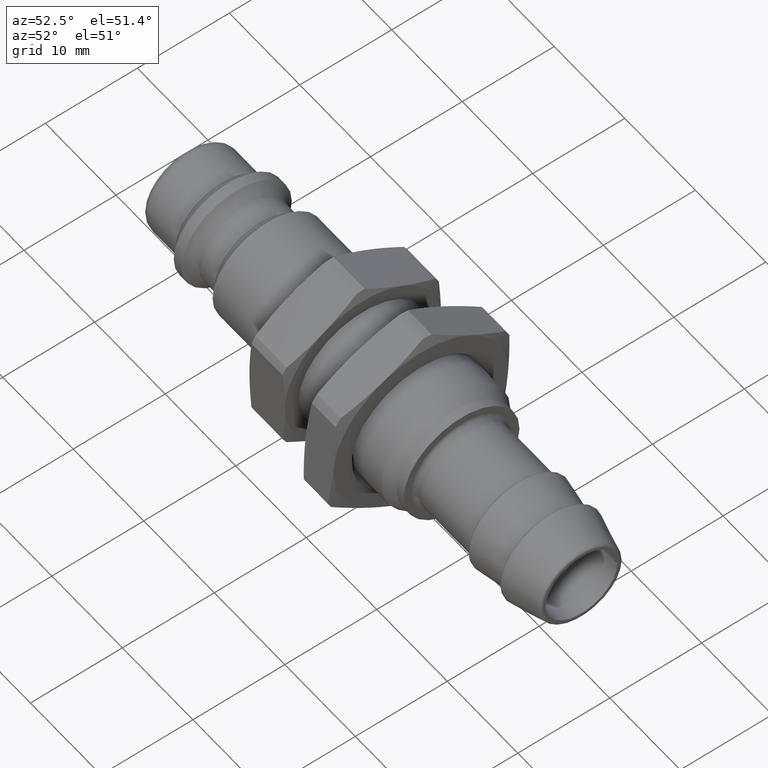
[diagram: clean part render]
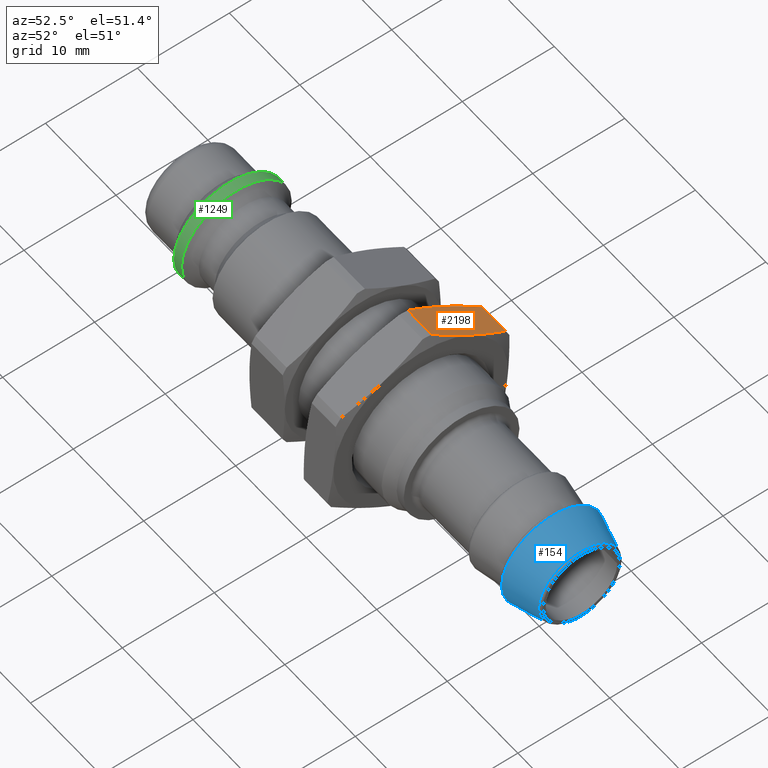
[diagram: same view with three faces highlighted in distinct colors, each labeled with its STEP entity id]
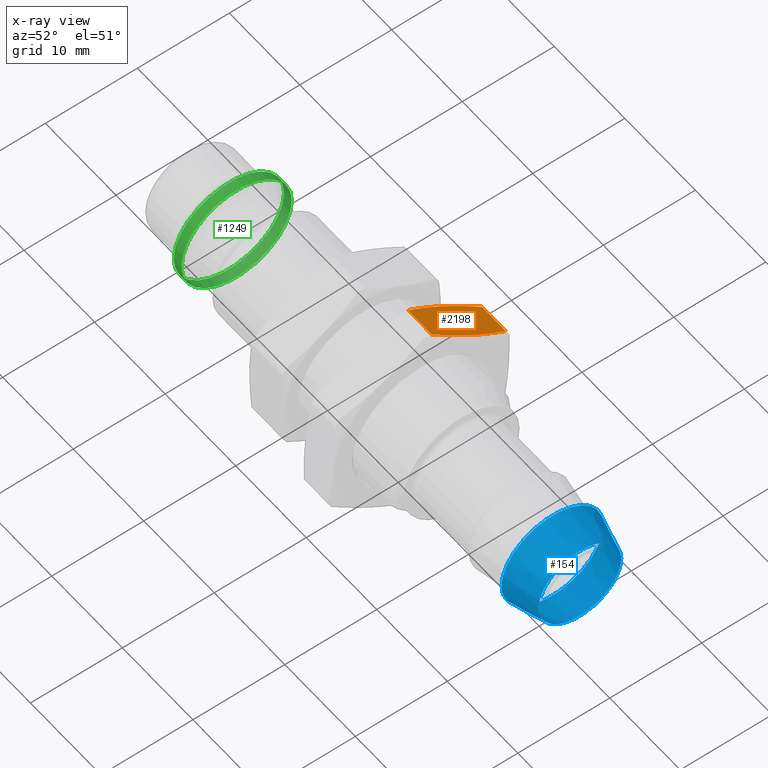
[diagram: x-ray of the same camera — body ghosted, the three highlighted faces saturated]
A machine part, auxiliary view with three faces highlighted in distinct colors.
The next image is the same camera in x-ray (body ghosted, the three faces saturated) — at least one of them is partly hidden behind the body in this view.
Their STEP definitions:

[orange] entity #2198 — the highlighted planar face has unit normal (0, -0.5752, -0.818).
#1656=CARTESIAN_POINT('',(0.0,4.750000000000002,8.227241335952167));
#1657=VERTEX_POINT('',#1656);
#1741=CARTESIAN_POINT('',(4.000000000000000,4.750000000000002,8.227241335952167));
#1742=VERTEX_POINT('',#1741);
#2119=CARTESIAN_POINT('',(4.659951927387788,4.750000000000002,8.227241335952167));
#2120=DIRECTION('',(0.0,-0.500000000000000,-0.866025403784439));
#2121=DIRECTION('',(0.0,0.866025403784439,-0.500000000000000));
#2122=AXIS2_PLACEMENT_3D('',#2119,#2120,#2121);
#2123=PLANE('',#2122);
#2124=CARTESIAN_POINT('',(0.321539030917348,0.486198878934433,10.688948060970400));
#2125=VERTEX_POINT('',#2124);
#2126=CARTESIAN_POINT('',(0.321539030917348,0.486198878934435,10.688948060970400));
#2127=CARTESIAN_POINT('',(9.855398E-016,2.744746997518659,9.384974696728074));
#2128=CARTESIAN_POINT('',(-3.469447E-017,4.750000000000001,8.227241335952167));
#2136=(BOUNDED_CURVE()B_SPLINE_CURVE(2,(#2126,#2127,#2128),.UNSPECIFIED.,.F.,.U.)B_SPLINE_CURVE_WITH_KNOTS((3,3),(0.0,0.493628243022414),.UNSPECIFIED.)CURVE()GEOMETRIC_REPRESENTATION_ITEM()RATIONAL_B_SPLINE_CURVE((1.0,1.031095482841850,1.0))REPRESENTATION_ITEM(''));
#2137=EDGE_CURVE('',#2125,#1657,#2136,.T.);
#2138=ORIENTED_EDGE('',*,*,#2137,.F.);
#2139=CARTESIAN_POINT('',(3.678460969082653,0.486198878934433,10.688948060970400));
#2140=VERTEX_POINT('',#2139);
#2141=CARTESIAN_POINT('',(3.678460969082653,0.486198878934433,10.688948060970400));
#2142=DIRECTION('',(-1.0,0.0,0.0));
#2143=VECTOR('',#2142,3.356921938165305);
#2144=LINE('',#2141,#2143);
#2145=EDGE_CURVE('',#2140,#2125,#2144,.T.);
#2146=ORIENTED_EDGE('',*,*,#2145,.F.);
#2147=CARTESIAN_POINT('',(4.000000000000000,4.750000000000001,8.227241335952167));
#2148=CARTESIAN_POINT('',(4.0,2.744746997518663,9.384974696728074));
#2149=CARTESIAN_POINT('',(3.678460969082652,0.486198878934432,10.688948060970402));
#2157=(BOUNDED_CURVE()B_SPLINE_CURVE(2,(#2147,#2148,#2149),.UNSPECIFIED.,.F.,.U.)B_SPLINE_CURVE_WITH_KNOTS((3,3),(0.493628243022414,0.987256486044829),.UNSPECIFIED.)CURVE()GEOMETRIC_REPRESENTATION_ITEM()RATIONAL_B_SPLINE_CURVE((1.0,1.031095482841848,1.0))REPRESENTATION_ITEM(''));
#2158=EDGE_CURVE('',#1742,#2140,#2157,.T.);
#2159=ORIENTED_EDGE('',*,*,#2158,.F.);
#2160=CARTESIAN_POINT('',(3.678460969082653,9.013801121065569,5.765534610933933));
#2161=VERTEX_POINT('',#2160);
#2162=CARTESIAN_POINT('',(3.678460969082652,9.013801121065569,5.765534610933932));
#2163=CARTESIAN_POINT('',(3.999999999999999,6.755253002481341,7.069507975176260));
#2164=CARTESIAN_POINT('',(4.000000000000000,4.750000000000001,8.227241335952167));
#2172=(BOUNDED_CURVE()B_SPLINE_CURVE(2,(#2162,#2163,#2164),.UNSPECIFIED.,.F.,.U.)B_SPLINE_CURVE_WITH_KNOTS((3,3),(0.0,0.493628243022414),.UNSPECIFIED.)CURVE()GEOMETRIC_REPRESENTATION_ITEM()RATIONAL_B_SPLINE_CURVE((1.0,1.031095482841837,1.0))REPRESENTATION_ITEM(''));
#2173=EDGE_CURVE('',#2161,#1742,#2172,.T.);
#2174=ORIENTED_EDGE('',*,*,#2173,.F.);
#2175=CARTESIAN_POINT('',(0.321539030917348,9.013801121065569,5.765534610933933));
#2176=VERTEX_POINT('',#2175);
#2177=CARTESIAN_POINT('',(0.321539030917348,9.013801121065569,5.765534610933933));
#2178=DIRECTION('',(1.0,0.0,0.0));
#2179=VECTOR('',#2178,3.356921938165305);
#2180=LINE('',#2177,#2179);
#2181=EDGE_CURVE('',#2176,#2161,#2180,.T.);
#2182=ORIENTED_EDGE('',*,*,#2181,.F.);
#2183=CARTESIAN_POINT('',(-3.469447E-017,4.750000000000001,8.227241335952167));
#2184=CARTESIAN_POINT('',(-1.054929E-015,6.755253002481344,7.069507975176258));
#2185=CARTESIAN_POINT('',(0.321539030917347,9.013801121065567,5.765534610933933));
#2193=(BOUNDED_CURVE()B_SPLINE_CURVE(2,(#2183,#2184,#2185),.UNSPECIFIED.,.F.,.U.)B_SPLINE_CURVE_WITH_KNOTS((3,3),(0.493628243022414,0.987256486044828),.UNSPECIFIED.)CURVE()GEOMETRIC_REPRESENTATION_ITEM()RATIONAL_B_SPLINE_CURVE((1.0,1.031095482841812,1.0))REPRESENTATION_ITEM(''));
#2194=EDGE_CURVE('',#1657,#2176,#2193,.T.);
#2195=ORIENTED_EDGE('',*,*,#2194,.F.);
#2196=EDGE_LOOP('',(#2138,#2146,#2159,#2174,#2182,#2195));
#2197=FACE_OUTER_BOUND('',#2196,.T.);
#2198=ADVANCED_FACE('',(#2197),#2123,.F.);

[blue] entity #154 — the highlighted conical surface has half-angle 15 deg.
#112=CARTESIAN_POINT('',(55.777645713530774,4.494775897405344,-6.162976E-032));
#113=VERTEX_POINT('',#112);
#114=CARTESIAN_POINT('',(55.777645713530774,0.0,-5.504513E-016));
#115=DIRECTION('',(1.0,0.0,0.0));
#116=DIRECTION('',(0.0,-1.0,0.0));
#117=AXIS2_PLACEMENT_3D('',#114,#115,#116);
#118=CIRCLE('',#117,4.494775897405344);
#119=EDGE_CURVE('',#113,#113,#118,.T.);
#135=CARTESIAN_POINT('',(53.938822856765391,0.0,0.0));
#136=DIRECTION('',(-1.0,0.0,0.0));
#137=DIRECTION('',(0.0,1.0,0.0));
#138=AXIS2_PLACEMENT_3D('',#135,#136,#137);
#139=CONICAL_SURFACE('',#138,4.987486996899516,14.999999999999973);
#140=CARTESIAN_POINT('',(51.877645713530768,5.539777747886721,0.0));
#141=VERTEX_POINT('',#140);
#142=CARTESIAN_POINT('',(51.877645713530768,0.0,0.0));
#143=DIRECTION('',(1.0,0.0,0.0));
#144=DIRECTION('',(0.0,1.0,0.0));
#145=AXIS2_PLACEMENT_3D('',#142,#143,#144);
#146=CIRCLE('',#145,5.539777747886721);
#147=EDGE_CURVE('',#141,#141,#146,.T.);
#148=ORIENTED_EDGE('',*,*,#147,.T.);
#149=EDGE_LOOP('',(#148));
#150=FACE_OUTER_BOUND('',#149,.T.);
#151=ORIENTED_EDGE('',*,*,#119,.F.);
#152=EDGE_LOOP('',(#151));
#153=FACE_BOUND('',#152,.T.);
#154=ADVANCED_FACE('',(#150,#153),#139,.T.);

[green] entity #1249 — the highlighted cylindrical surface (bore or boss wall) has radius 6 mm, axis along (1, 0, 0).
#1215=CARTESIAN_POINT('',(6.0,6.000000000000001,0.0));
#1216=VERTEX_POINT('',#1215);
#1217=CARTESIAN_POINT('',(6.0,0.0,0.0));
#1218=DIRECTION('',(1.0,0.0,0.0));
#1219=DIRECTION('',(0.0,1.0,0.0));
#1220=AXIS2_PLACEMENT_3D('',#1217,#1218,#1219);
#1221=CIRCLE('',#1220,6.000000000000001);
#1222=EDGE_CURVE('',#1216,#1216,#1221,.T.);
#1230=CARTESIAN_POINT('',(6.550000000000001,0.0,0.0));
#1231=DIRECTION('',(1.0,0.0,0.0));
#1232=DIRECTION('',(0.0,1.0,0.0));
#1233=AXIS2_PLACEMENT_3D('',#1230,#1231,#1232);
#1234=CYLINDRICAL_SURFACE('',#1233,6.000000000000001);
#1235=CARTESIAN_POINT('',(7.100000000000000,6.000000000000001,0.0));
#1236=VERTEX_POINT('',#1235);
#1237=CARTESIAN_POINT('',(7.100000000000000,0.0,0.0));
#1238=DIRECTION('',(1.0,0.0,0.0));
#1239=DIRECTION('',(0.0,1.0,0.0));
#1240=AXIS2_PLACEMENT_3D('',#1237,#1238,#1239);
#1241=CIRCLE('',#1240,6.000000000000001);
#1242=EDGE_CURVE('',#1236,#1236,#1241,.T.);
#1243=ORIENTED_EDGE('',*,*,#1242,.F.);
#1244=EDGE_LOOP('',(#1243));
#1245=FACE_OUTER_BOUND('',#1244,.T.);
#1246=ORIENTED_EDGE('',*,*,#1222,.T.);
#1247=EDGE_LOOP('',(#1246));
#1248=FACE_BOUND('',#1247,.T.);
#1249=ADVANCED_FACE('',(#1245,#1248),#1234,.T.);